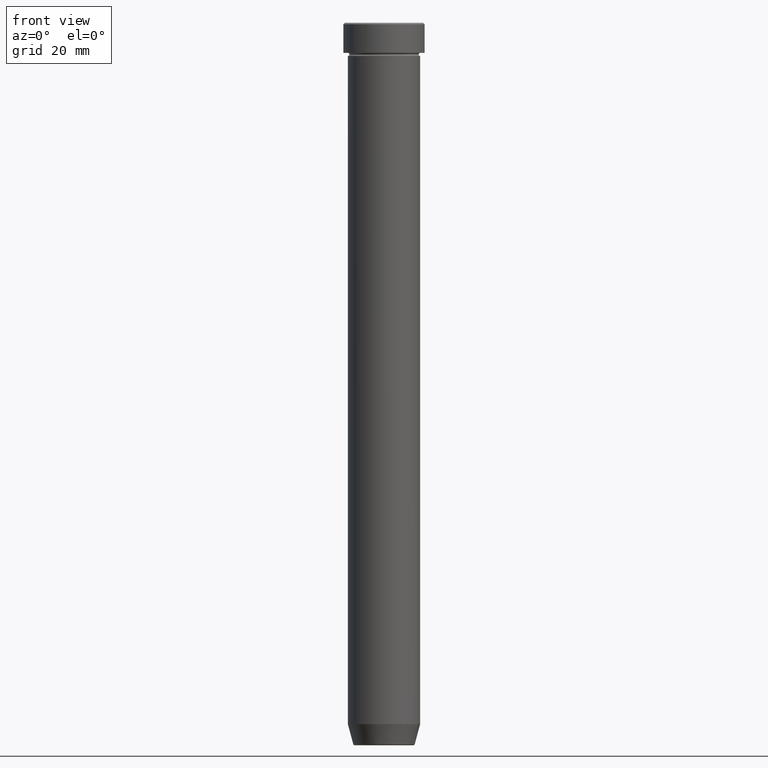
[diagram: clean part render]
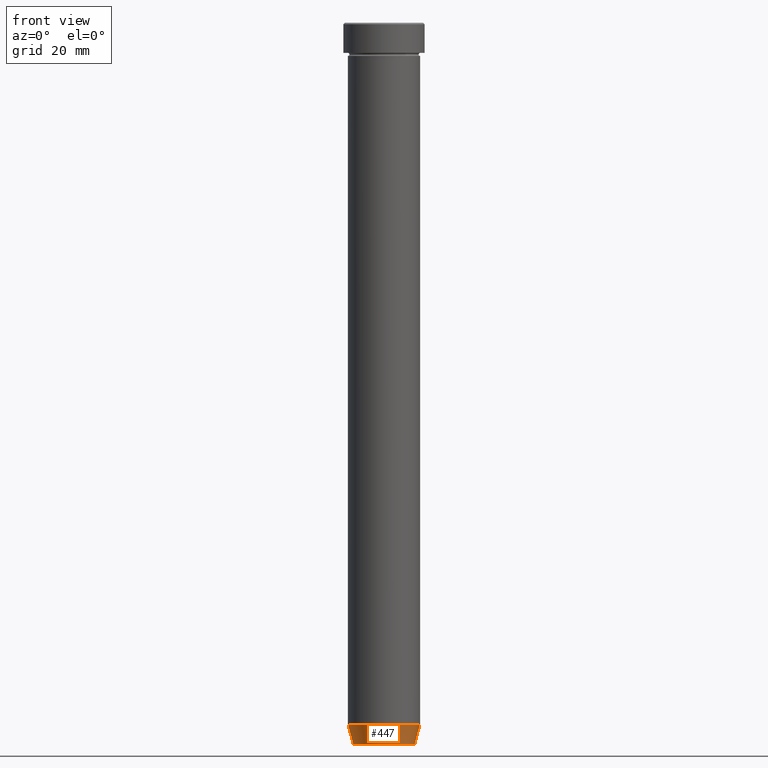
[diagram: same view with one face highlighted and labeled with its STEP entity id]
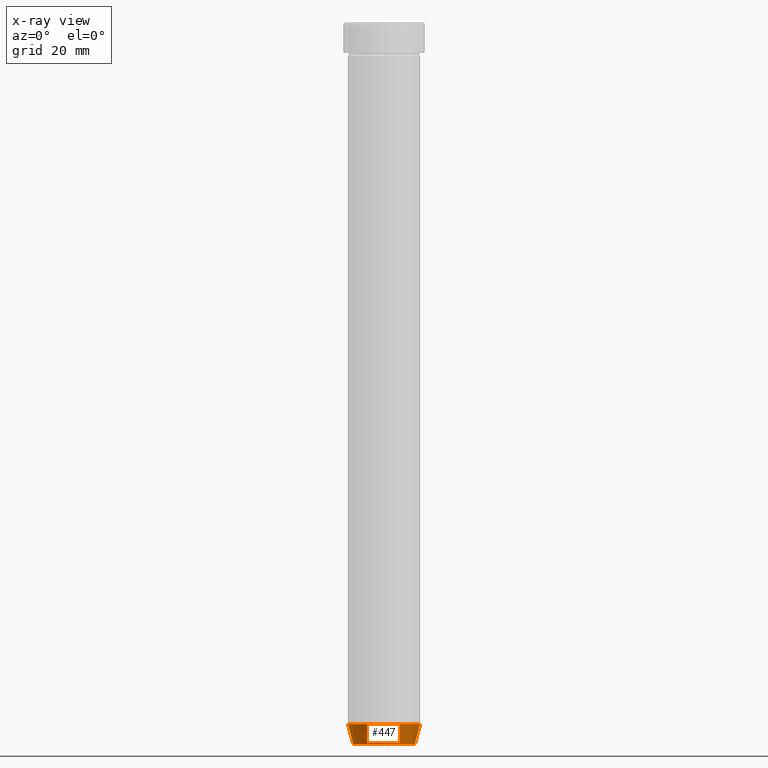
[diagram: x-ray of the same camera — body ghosted, the highlighted face saturated]
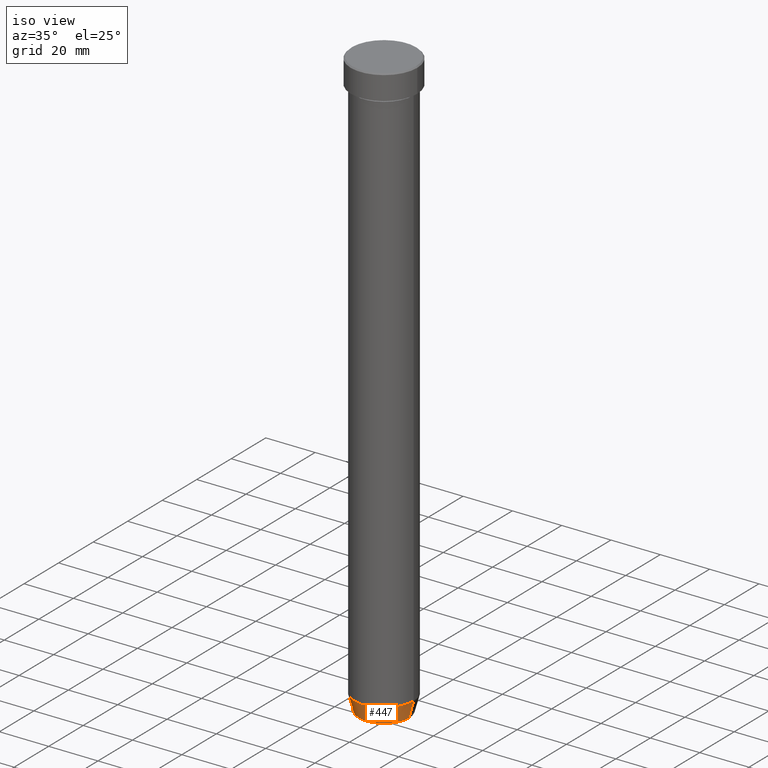
[diagram: same view with one face highlighted and labeled with its STEP entity id]
A machine part, front view. The second image highlights one B-rep face of the part: STEP entity #447.
The next image is the same camera in x-ray: the body ghosted, the highlighted face saturated — about 0% of this face is hidden behind the body in this view.
A second angle (iso view) of the same face is appended — the face is thin or edge-on in the first view.
In plain terms, the highlighted conical surface has half-angle 15 deg.
Its self-contained STEP definition (entity closure, byte-faithful):
#1 = EDGE_CURVE ( 'NONE', #207, #245, #401, .T. ) ;
#9 = VECTOR ( 'NONE', #59, 1000.000000000000114 ) ;
#19 = CARTESIAN_POINT ( 'NONE',  ( 10.22365507213719482, 0.000000000000000000, -239.6294095225512422 ) ) ;
#25 = CARTESIAN_POINT ( 'NONE',  ( 0.000000000000000000, 0.000000000000000000, -240.0000000000000000 ) ) ;
#59 = DIRECTION ( 'NONE',  ( 0.2588190451025206840, 0.000000000000000000, 0.9659258262890683122 ) ) ;
#70 = CARTESIAN_POINT ( 'NONE',  ( 0.000000000000000000, 0.000000000000000000, -232.9999999999999716 ) ) ;
#77 = CONICAL_SURFACE ( 'NONE', #352, 10.12435565298214080, 0.2617993877991493523 ) ;
#97 = DIRECTION ( 'NONE',  ( -1.000000000000000000, 0.000000000000000000, 0.000000000000000000 ) ) ;
#104 = VERTEX_POINT ( 'NONE', #461 ) ;
#138 = DIRECTION ( 'NONE',  ( 1.000000000000000000, 0.000000000000000000, 0.000000000000000000 ) ) ;
#154 = ORIENTED_EDGE ( 'NONE', *, *, #1, .F. ) ;
#170 = EDGE_LOOP ( 'NONE', ( #154, #471, #387, #431 ) ) ;
#184 = CIRCLE ( 'NONE', #253, 10.22365507213719482 ) ;
#186 = DIRECTION ( 'NONE',  ( -0.000000000000000000, -0.000000000000000000, 1.000000000000000000 ) ) ;
#192 = CARTESIAN_POINT ( 'NONE',  ( -10.22365507213719482, 1.360806402472382547E-15, -239.6294095225512422 ) ) ;
#207 = VERTEX_POINT ( 'NONE', #192 ) ;
#237 = CARTESIAN_POINT ( 'NONE',  ( 0.000000000000000000, 0.000000000000000000, -239.6294095225512422 ) ) ;
#245 = VERTEX_POINT ( 'NONE', #470 ) ;
#250 = LINE ( 'NONE', #386, #9 ) ;
#253 = AXIS2_PLACEMENT_3D ( 'NONE', #237, #374, #97 ) ;
#256 = DIRECTION ( 'NONE',  ( -0.000000000000000000, -0.000000000000000000, 1.000000000000000000 ) ) ;
#258 = EDGE_CURVE ( 'NONE', #298, #104, #250, .T. ) ;
#298 = VERTEX_POINT ( 'NONE', #19 ) ;
#310 = AXIS2_PLACEMENT_3D ( 'NONE', #70, #256, #393 ) ;
#345 = EDGE_CURVE ( 'NONE', #245, #104, #578, .T. ) ;
#352 = AXIS2_PLACEMENT_3D ( 'NONE', #25, #186, #138 ) ;
#361 = VECTOR ( 'NONE', #541, 1000.000000000000114 ) ;
#374 = DIRECTION ( 'NONE',  ( -0.000000000000000000, -0.000000000000000000, 1.000000000000000000 ) ) ;
#386 = CARTESIAN_POINT ( 'NONE',  ( 10.12435565298214080, 0.000000000000000000, -240.0000000000000000 ) ) ;
#387 = ORIENTED_EDGE ( 'NONE', *, *, #258, .T. ) ;
#393 = DIRECTION ( 'NONE',  ( 1.000000000000000000, 0.000000000000000000, 0.000000000000000000 ) ) ;
#401 = LINE ( 'NONE', #493, #361 ) ;
#431 = ORIENTED_EDGE ( 'NONE', *, *, #345, .F. ) ;
#447 = ADVANCED_FACE ( 'NONE', ( #552 ), #77, .T. ) ;
#461 = CARTESIAN_POINT ( 'NONE',  ( 12.00000000000000000, 0.000000000000000000, -232.9999999999999716 ) ) ;
#470 = CARTESIAN_POINT ( 'NONE',  ( -12.00000000000000000, 1.469576158976823947E-15, -232.9999999999999716 ) ) ;
#471 = ORIENTED_EDGE ( 'NONE', *, *, #555, .T. ) ;
#493 = CARTESIAN_POINT ( 'NONE',  ( -10.12435565298214080, 1.239875974385398941E-15, -240.0000000000000000 ) ) ;
#541 = DIRECTION ( 'NONE',  ( -0.2588190451025206840, 3.169619151431763092E-17, 0.9659258262890683122 ) ) ;
#552 = FACE_OUTER_BOUND ( 'NONE', #170, .T. ) ;
#555 = EDGE_CURVE ( 'NONE', #207, #298, #184, .T. ) ;
#578 = CIRCLE ( 'NONE', #310, 12.00000000000000000 ) ;